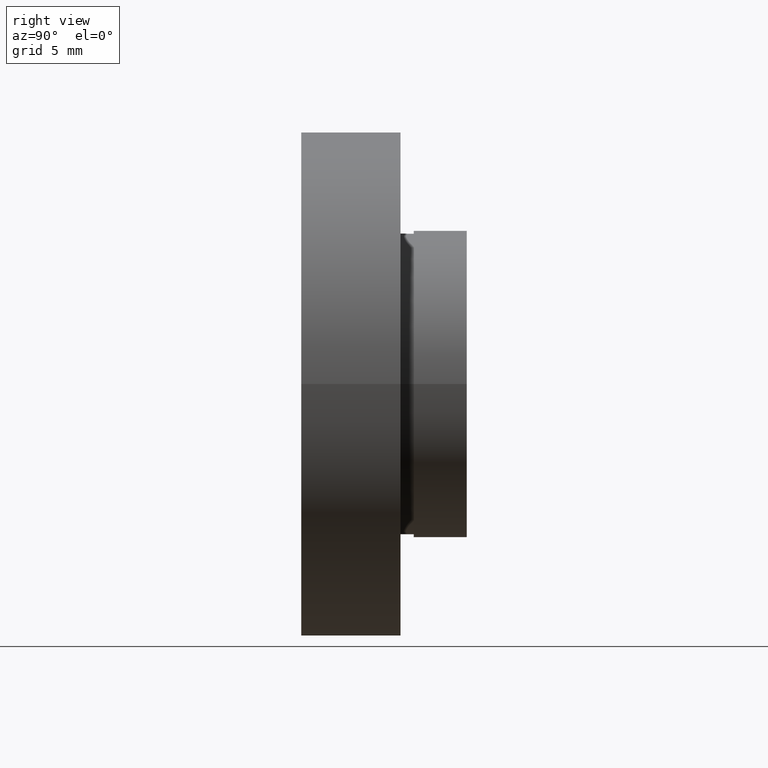
[diagram: clean part render]
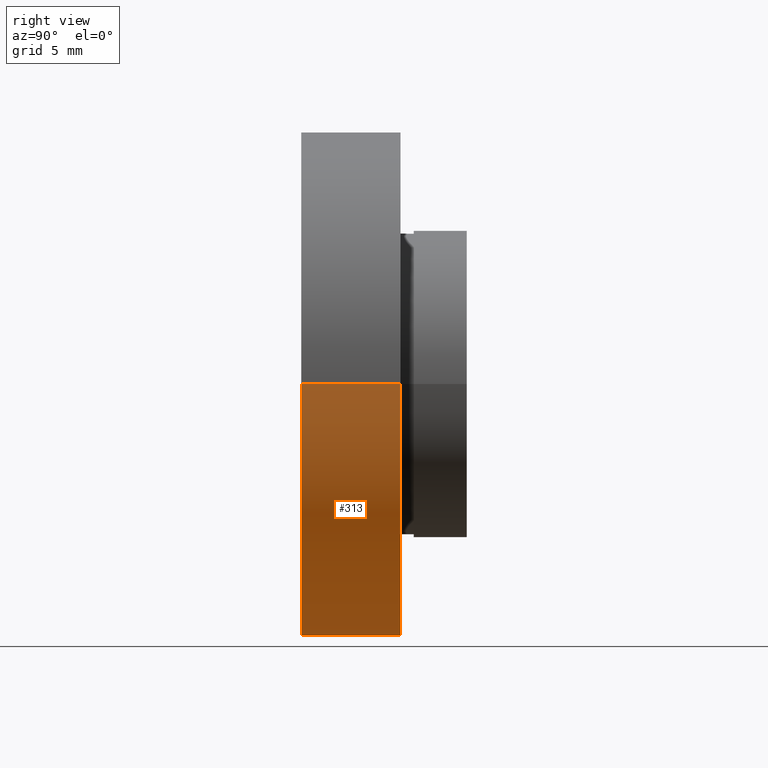
[diagram: same view with one face highlighted and labeled with its STEP entity id]
A machine part, right view. The second image highlights one B-rep face of the part: STEP entity #313.
In plain terms, the highlighted cylindrical surface (partial cylindrical patch) has radius 19.05 mm, axis along (-0, 1, -0).
Its self-contained STEP definition (entity closure, byte-faithful):
#20 = CYLINDRICAL_SURFACE ( 'NONE', #192, 19.05000000000000400 ) ;
#24 = EDGE_CURVE ( 'NONE', #32, #182, #565, .T. ) ;
#32 = VERTEX_POINT ( 'NONE', #127 ) ;
#35 = CIRCLE ( 'NONE', #352, 19.05000000000000400 ) ;
#40 = EDGE_LOOP ( 'NONE', ( #214, #539, #375, #63 ) ) ;
#47 = LINE ( 'NONE', #600, #146 ) ;
#63 = ORIENTED_EDGE ( 'NONE', *, *, #320, .F. ) ;
#90 = CARTESIAN_POINT ( 'NONE',  ( 19.05000000000000400, 7.499999999999999100, 2.332952152375708400E-015 ) ) ;
#98 = EDGE_CURVE ( 'NONE', #32, #441, #373, .T. ) ;
#110 = CARTESIAN_POINT ( 'NONE',  ( -19.04999999999999700, -5.802399104329318300E-015, 0.0000000000000000000 ) ) ;
#127 = CARTESIAN_POINT ( 'NONE',  ( 19.05000000000000400, -1.136494799577910300E-015, 2.332952152375708400E-015 ) ) ;
#146 = VECTOR ( 'NONE', #270, 1000.000000000000000 ) ;
#182 = VERTEX_POINT ( 'NONE', #90 ) ;
#192 = AXIS2_PLACEMENT_3D ( 'NONE', #251, #586, #434 ) ;
#214 = ORIENTED_EDGE ( 'NONE', *, *, #24, .F. ) ;
#248 = DIRECTION ( 'NONE',  ( -1.224646799147351000E-016, 1.000000000000000000, -0.0000000000000000000 ) ) ;
#251 = CARTESIAN_POINT ( 'NONE',  ( 0.0000000000000000000, 16.88601823708207700, 0.0000000000000000000 ) ) ;
#270 = DIRECTION ( 'NONE',  ( -1.224646799147351000E-016, 1.000000000000000000, -0.0000000000000000000 ) ) ;
#277 = DIRECTION ( 'NONE',  ( -1.224646799147351000E-016, 1.000000000000000000, -0.0000000000000000000 ) ) ;
#313 = ADVANCED_FACE ( 'NONE', ( #399 ), #20, .T. ) ;
#319 = CARTESIAN_POINT ( 'NONE',  ( 19.05000000000000400, 16.88601823708208000, 2.332952152375708400E-015 ) ) ;
#320 = EDGE_CURVE ( 'NONE', #182, #607, #35, .T. ) ;
#346 = VECTOR ( 'NONE', #466, 1000.000000000000000 ) ;
#352 = AXIS2_PLACEMENT_3D ( 'NONE', #398, #248, #584 ) ;
#373 = CIRCLE ( 'NONE', #390, 19.05000000000000100 ) ;
#375 = ORIENTED_EDGE ( 'NONE', *, *, #459, .T. ) ;
#390 = AXIS2_PLACEMENT_3D ( 'NONE', #555, #277, #606 ) ;
#398 = CARTESIAN_POINT ( 'NONE',  ( 1.149455719078123100E-015, 7.499999999999996400, 0.0000000000000000000 ) ) ;
#399 = FACE_OUTER_BOUND ( 'NONE', #40, .T. ) ;
#434 = DIRECTION ( 'NONE',  ( -1.000000000000000000, -1.821231995776175000E-016, 0.0000000000000000000 ) ) ;
#441 = VERTEX_POINT ( 'NONE', #110 ) ;
#459 = EDGE_CURVE ( 'NONE', #441, #607, #47, .T. ) ;
#466 = DIRECTION ( 'NONE',  ( -1.224646799147351000E-016, 1.000000000000000000, -0.0000000000000000000 ) ) ;
#539 = ORIENTED_EDGE ( 'NONE', *, *, #98, .T. ) ;
#555 = CARTESIAN_POINT ( 'NONE',  ( 2.067940818438636500E-015, -3.469446951953614200E-015, 0.0000000000000000000 ) ) ;
#565 = LINE ( 'NONE', #319, #346 ) ;
#584 = DIRECTION ( 'NONE',  ( -1.000000000000000000, -1.365923996832131400E-016, 0.0000000000000000000 ) ) ;
#586 = DIRECTION ( 'NONE',  ( -1.224646799147351000E-016, 1.000000000000000000, -0.0000000000000000000 ) ) ;
#600 = CARTESIAN_POINT ( 'NONE',  ( -19.05000000000000400, 16.88601823708207300, 0.0000000000000000000 ) ) ;
#606 = DIRECTION ( 'NONE',  ( -1.000000000000000000, -1.224646799147351200E-016, 0.0000000000000000000 ) ) ;
#607 = VERTEX_POINT ( 'NONE', #621 ) ;
#621 = CARTESIAN_POINT ( 'NONE',  ( -19.05000000000000400, 7.499999999999993800, 0.0000000000000000000 ) ) ;